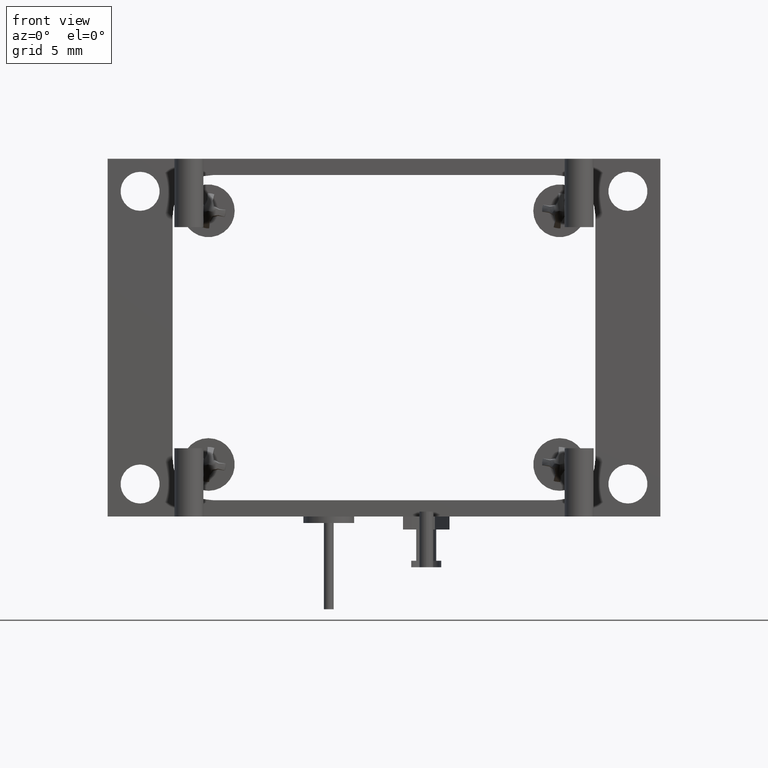
[diagram: clean part render]
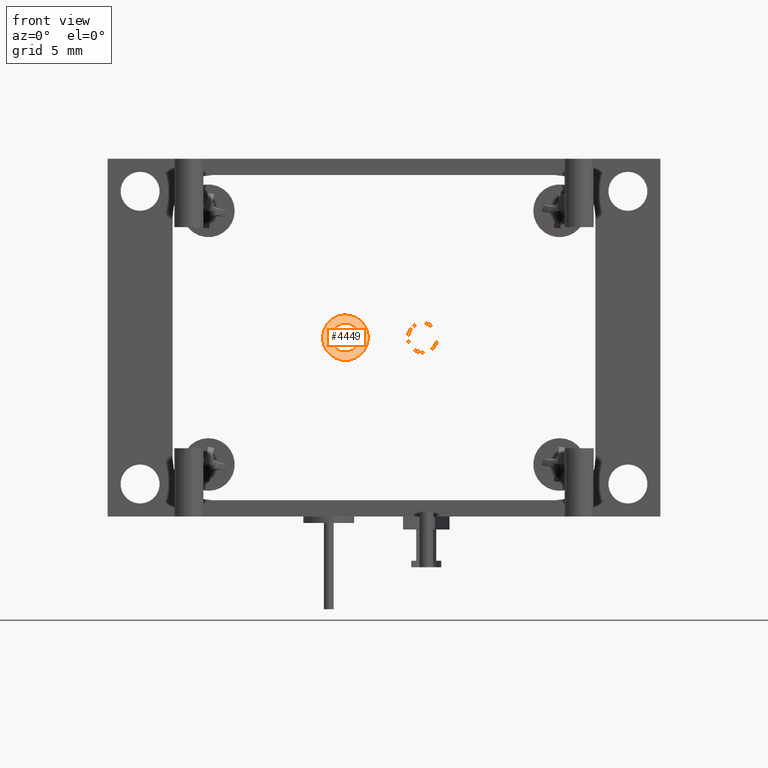
[diagram: same view with one face highlighted and labeled with its STEP entity id]
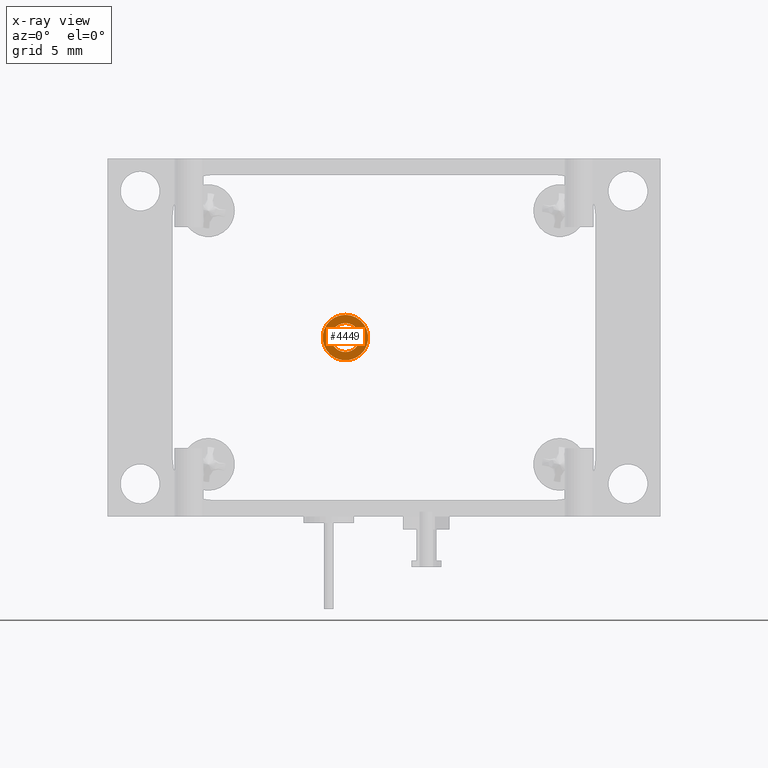
[diagram: x-ray of the same camera — body ghosted, the highlighted face saturated]
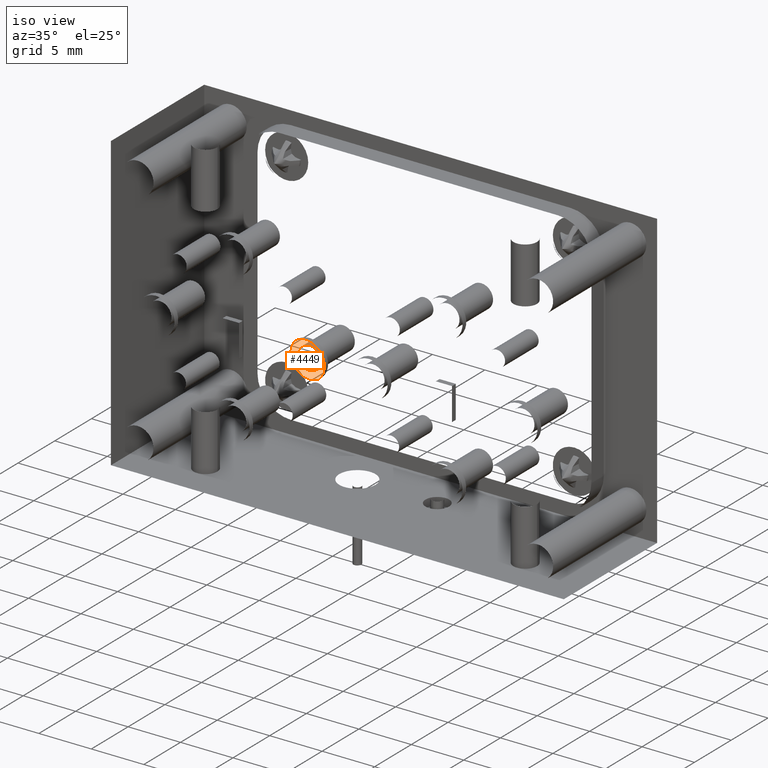
[diagram: same view with one face highlighted and labeled with its STEP entity id]
A machine part, front view. The second image highlights one B-rep face of the part: STEP entity #4449.
The next image is the same camera in x-ray: the body ghosted, the highlighted face saturated — about 0% of this face is hidden behind the body in this view.
A second angle (iso view) of the same face is appended — the face is thin or edge-on in the first view.
In plain terms, the highlighted planar face has unit normal (0, -1, 0).
Its self-contained STEP definition (entity closure, byte-faithful):
#83 = CARTESIAN_POINT ( 'NONE',  ( -0.2080676255151993100, 1.579071440405353200, 0.5565758433327400200 ) ) ;
#166 = DIRECTION ( 'NONE',  ( 0.0000000000000000000, 0.0000000000000000000, -1.000000000000000000 ) ) ;
#328 = ORIENTED_EDGE ( 'NONE', *, *, #771, .F. ) ;
#771 = EDGE_CURVE ( 'NONE', #1147, #4897, #4622, .T. ) ;
#957 = CIRCLE ( 'NONE', #7811, 0.04449999999999975500 ) ;
#1147 = VERTEX_POINT ( 'NONE', #83 ) ;
#1315 = DIRECTION ( 'NONE',  ( 0.0000000000000000000, -0.0000000000000000000, -1.000000000000000000 ) ) ;
#1545 = DIRECTION ( 'NONE',  ( 0.0000000000000000000, 0.0000000000000000000, -1.000000000000000000 ) ) ;
#1612 = ORIENTED_EDGE ( 'NONE', *, *, #3198, .F. ) ;
#1785 = EDGE_LOOP ( 'NONE', ( #1612, #4395 ) ) ;
#1863 = CARTESIAN_POINT ( 'NONE',  ( -0.2080676255151993100, 1.579071440405353200, 0.4420758433327402500 ) ) ;
#1968 = DIRECTION ( 'NONE',  ( 0.0000000000000000000, 1.000000000000000000, 0.0000000000000000000 ) ) ;
#2195 = CARTESIAN_POINT ( 'NONE',  ( -0.2080676255151993100, 1.579071440405353200, 0.4865758433327400100 ) ) ;
#2218 = CIRCLE ( 'NONE', #6966, 0.04449999999999975500 ) ;
#2474 = EDGE_CURVE ( 'NONE', #4342, #5300, #957, .T. ) ;
#2520 = CIRCLE ( 'NONE', #5574, 0.07000000000000000700 ) ;
#2534 = CARTESIAN_POINT ( 'NONE',  ( -0.2080676255151993100, 1.579071440405353200, 0.4165758433327400000 ) ) ;
#3198 = EDGE_CURVE ( 'NONE', #5300, #4342, #2218, .T. ) ;
#3214 = CARTESIAN_POINT ( 'NONE',  ( -0.2080676255151993100, 1.579071440405353200, 0.4865758433327400100 ) ) ;
#3269 = DIRECTION ( 'NONE',  ( 0.0000000000000000000, 1.000000000000000000, 0.0000000000000000000 ) ) ;
#3480 = FACE_BOUND ( 'NONE', #1785, .T. ) ;
#3874 = EDGE_CURVE ( 'NONE', #4897, #1147, #2520, .T. ) ;
#3895 = CARTESIAN_POINT ( 'NONE',  ( -0.2080676255151993100, 1.579071440405353200, 0.4865758433327400100 ) ) ;
#3976 = CARTESIAN_POINT ( 'NONE',  ( -0.2080676255151993100, 1.579071440405353200, 0.4865758433327400100 ) ) ;
#4033 = EDGE_LOOP ( 'NONE', ( #7108, #328 ) ) ;
#4342 = VERTEX_POINT ( 'NONE', #6818 ) ;
#4395 = ORIENTED_EDGE ( 'NONE', *, *, #2474, .F. ) ;
#4449 = ADVANCED_FACE ( 'NONE', ( #5125, #3480 ), #6919, .F. ) ;
#4498 = DIRECTION ( 'NONE',  ( -0.0000000000000000000, -1.000000000000000000, -0.0000000000000000000 ) ) ;
#4622 = CIRCLE ( 'NONE', #5027, 0.07000000000000000700 ) ;
#4897 = VERTEX_POINT ( 'NONE', #2534 ) ;
#5027 = AXIS2_PLACEMENT_3D ( 'NONE', #2195, #7166, #1545 ) ;
#5125 = FACE_OUTER_BOUND ( 'NONE', #4033, .T. ) ;
#5300 = VERTEX_POINT ( 'NONE', #1863 ) ;
#5574 = AXIS2_PLACEMENT_3D ( 'NONE', #3895, #4498, #166 ) ;
#5657 = DIRECTION ( 'NONE',  ( 0.0000000000000000000, -1.000000000000000000, 0.0000000000000000000 ) ) ;
#5684 = CARTESIAN_POINT ( 'NONE',  ( -0.2080676255151993100, 1.579071440405353200, 0.4865758433327400100 ) ) ;
#6818 = CARTESIAN_POINT ( 'NONE',  ( -0.2080676255151993100, 1.579071440405353200, 0.5310758433327397200 ) ) ;
#6919 = PLANE ( 'NONE',  #7174 ) ;
#6966 = AXIS2_PLACEMENT_3D ( 'NONE', #3976, #3269, #7568 ) ;
#7108 = ORIENTED_EDGE ( 'NONE', *, *, #3874, .F. ) ;
#7166 = DIRECTION ( 'NONE',  ( -0.0000000000000000000, -1.000000000000000000, -0.0000000000000000000 ) ) ;
#7174 = AXIS2_PLACEMENT_3D ( 'NONE', #3214, #5657, #1315 ) ;
#7524 = DIRECTION ( 'NONE',  ( 0.0000000000000000000, 0.0000000000000000000, -1.000000000000000000 ) ) ;
#7568 = DIRECTION ( 'NONE',  ( 0.0000000000000000000, 0.0000000000000000000, -1.000000000000000000 ) ) ;
#7811 = AXIS2_PLACEMENT_3D ( 'NONE', #5684, #1968, #7524 ) ;